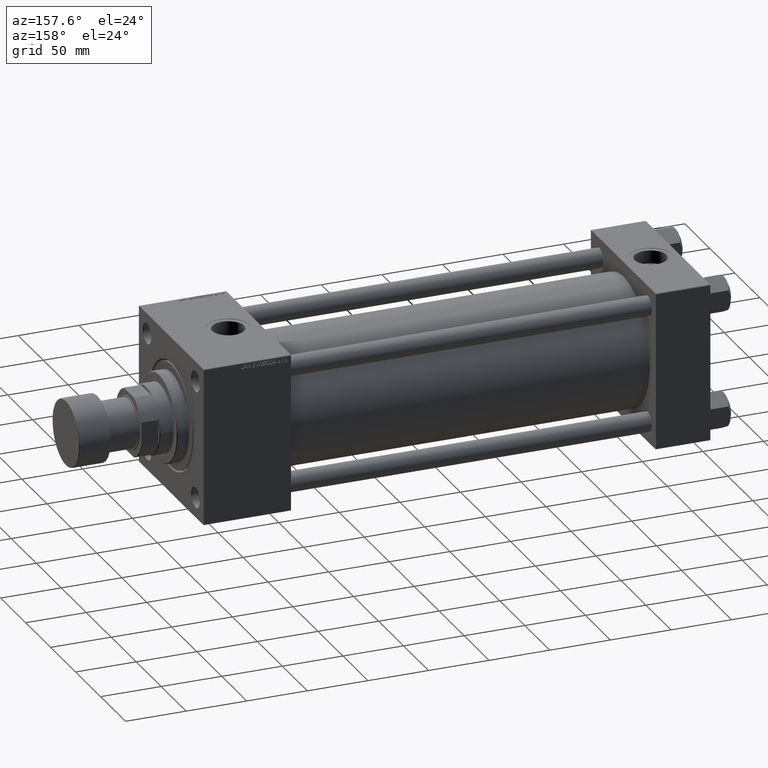
[diagram: clean part render]
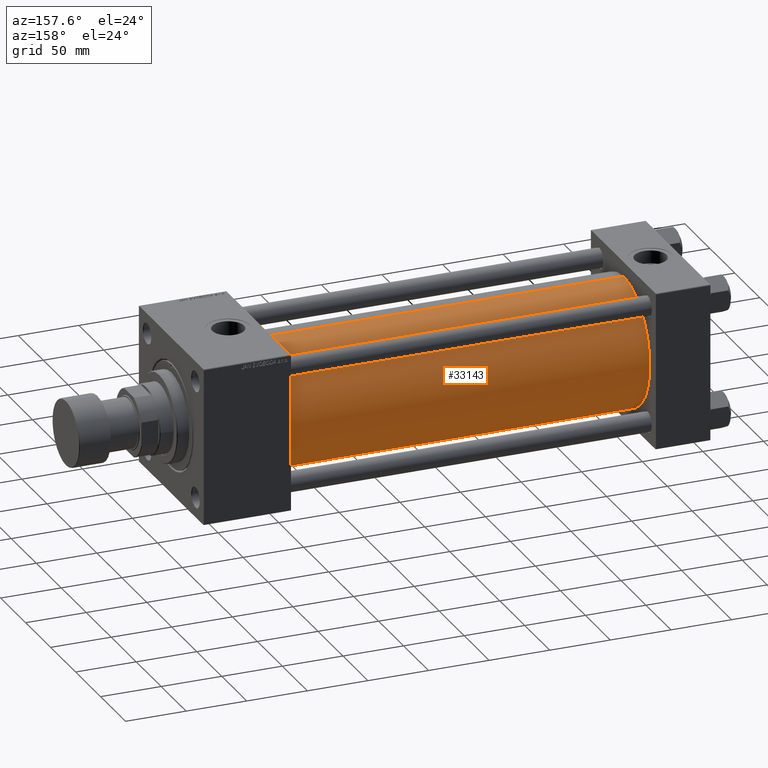
[diagram: same view with one face highlighted and labeled with its STEP entity id]
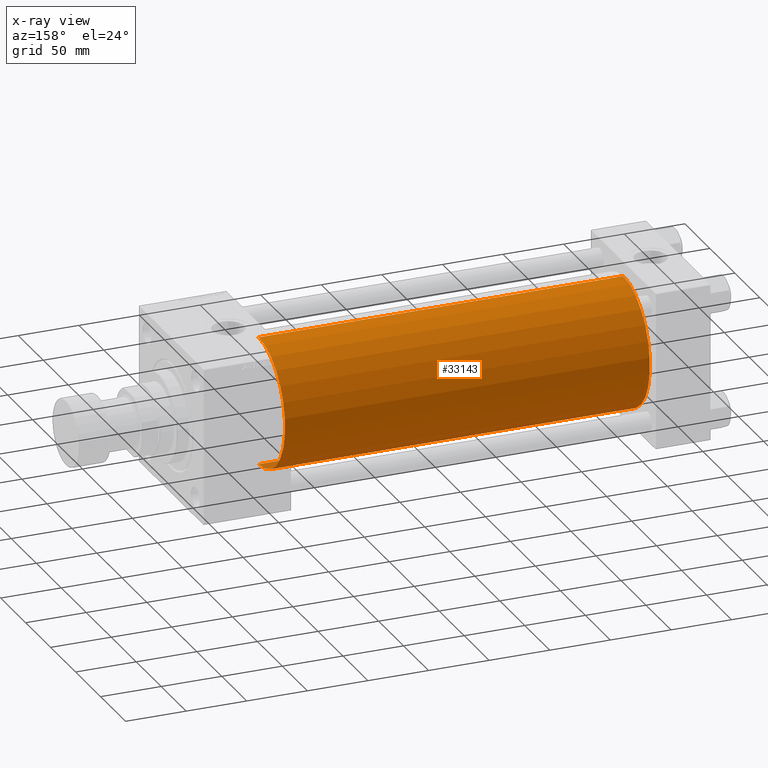
[diagram: x-ray of the same camera — body ghosted, the highlighted face saturated]
A machine part, auxiliary view. The second image highlights one B-rep face of the part: STEP entity #33143.
The next image is the same camera in x-ray: the body ghosted, the highlighted face saturated — about 0% of this face is hidden behind the body in this view.
In plain terms, the highlighted cylindrical surface (partial cylindrical patch) has radius 53 mm, axis along (-1, -0, -0).
Its self-contained STEP definition (entity closure, byte-faithful):
#2853 = EDGE_CURVE ( 'NONE', #24320, #18089, #48754, .T. ) ;
#3615 = DIRECTION ( 'NONE',  ( -1.000000000000000000, -0.000000000000000000, -0.000000000000000000 ) ) ;
#4176 = AXIS2_PLACEMENT_3D ( 'NONE', #45720, #33907, #17263 ) ;
#6938 = CARTESIAN_POINT ( 'NONE',  ( 346.0000000000000000, 3.888542821515762466E-15, -53.00000000000000711 ) ) ;
#11543 = VECTOR ( 'NONE', #51320, 1000.000000000000000 ) ;
#15865 = VECTOR ( 'NONE', #46624, 1000.000000000000000 ) ;
#15957 = DIRECTION ( 'NONE',  ( 0.000000000000000000, 0.000000000000000000, 1.000000000000000000 ) ) ;
#17263 = DIRECTION ( 'NONE',  ( 0.000000000000000000, 0.000000000000000000, -1.000000000000000000 ) ) ;
#17900 = LINE ( 'NONE', #30268, #15865 ) ;
#18089 = VERTEX_POINT ( 'NONE', #24122 ) ;
#18566 = CARTESIAN_POINT ( 'NONE',  ( 346.0000000000000000, -2.602085213965210642E-15, 53.00000000000000711 ) ) ;
#19278 = ORIENTED_EDGE ( 'NONE', *, *, #40658, .F. ) ;
#19288 = ORIENTED_EDGE ( 'NONE', *, *, #27335, .T. ) ;
#21383 = CARTESIAN_POINT ( 'NONE',  ( 44.99999999999998579, -2.602085213965210642E-15, 0.000000000000000000 ) ) ;
#22868 = LINE ( 'NONE', #18566, #11543 ) ;
#24122 = CARTESIAN_POINT ( 'NONE',  ( 346.0000000000000000, -2.602085213965210642E-15, 53.00000000000000711 ) ) ;
#24320 = VERTEX_POINT ( 'NONE', #6938 ) ;
#27335 = EDGE_CURVE ( 'NONE', #51764, #51809, #30028, .T. ) ;
#28569 = AXIS2_PLACEMENT_3D ( 'NONE', #48987, #3615, #15957 ) ;
#30028 = CIRCLE ( 'NONE', #41161, 53.00000000000000711 ) ;
#30268 = CARTESIAN_POINT ( 'NONE',  ( 346.0000000000000000, 3.888542821515762466E-15, -53.00000000000000711 ) ) ;
#32399 = DIRECTION ( 'NONE',  ( 1.000000000000000000, -0.000000000000000000, 0.000000000000000000 ) ) ;
#33143 = ADVANCED_FACE ( 'NONE', ( #35580 ), #40388, .T. ) ;
#33907 = DIRECTION ( 'NONE',  ( 1.000000000000000000, 0.000000000000000000, 0.000000000000000000 ) ) ;
#35580 = FACE_OUTER_BOUND ( 'NONE', #49627, .T. ) ;
#37740 = DIRECTION ( 'NONE',  ( 0.000000000000000000, 0.000000000000000000, 1.000000000000000000 ) ) ;
#40388 = CYLINDRICAL_SURFACE ( 'NONE', #28569, 53.00000000000000711 ) ;
#40658 = EDGE_CURVE ( 'NONE', #18089, #51809, #22868, .T. ) ;
#41161 = AXIS2_PLACEMENT_3D ( 'NONE', #21383, #32399, #37740 ) ;
#41165 = EDGE_CURVE ( 'NONE', #24320, #51764, #17900, .T. ) ;
#45720 = CARTESIAN_POINT ( 'NONE',  ( 346.0000000000000000, -2.602085213965210642E-15, 0.000000000000000000 ) ) ;
#46624 = DIRECTION ( 'NONE',  ( -1.000000000000000000, -0.000000000000000000, -0.000000000000000000 ) ) ;
#48523 = ORIENTED_EDGE ( 'NONE', *, *, #41165, .T. ) ;
#48754 = CIRCLE ( 'NONE', #4176, 53.00000000000000711 ) ;
#48987 = CARTESIAN_POINT ( 'NONE',  ( 346.0000000000000000, -2.602085213965210642E-15, 0.000000000000000000 ) ) ;
#49543 = CARTESIAN_POINT ( 'NONE',  ( 44.99999999999998579, -2.602085213965210642E-15, 53.00000000000000711 ) ) ;
#49627 = EDGE_LOOP ( 'NONE', ( #51124, #48523, #19288, #19278 ) ) ;
#51124 = ORIENTED_EDGE ( 'NONE', *, *, #2853, .F. ) ;
#51320 = DIRECTION ( 'NONE',  ( -1.000000000000000000, -0.000000000000000000, -0.000000000000000000 ) ) ;
#51764 = VERTEX_POINT ( 'NONE', #52781 ) ;
#51809 = VERTEX_POINT ( 'NONE', #49543 ) ;
#52781 = CARTESIAN_POINT ( 'NONE',  ( 44.99999999999998579, 3.888542821515762466E-15, -53.00000000000000711 ) ) ;